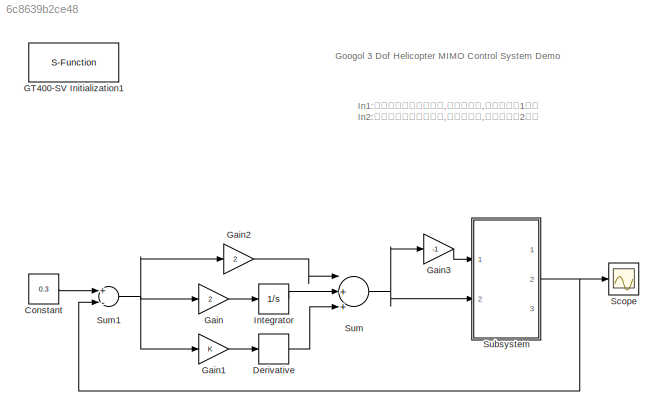
MODEL slx_6c8639b2ce48
KIND model
BLOCK [Constant] Constant
  Value = 0.3
BLOCK [Derivative] Derivative
BLOCK [S-Function] GT400-SV Initialization1
  EnableBusSupport = off
  FunctionName = Initialize
  Parameters = openloop
  Ports = []
  Priority = 0
BLOCK [Gain] Gain
  Gain = 2
  OutDataTypeStr = Inherit: Inherit via internal rule
  ParamDataTypeStr = Inherit: Inherit via internal rule
  SaturateOnIntegerOverflow = off
BLOCK [Gain] Gain1
  OutDataTypeStr = Inherit: Inherit via internal rule
  ParamDataTypeStr = Inherit: Inherit via internal rule
  SaturateOnIntegerOverflow = off
BLOCK [Gain] Gain2
  Gain = 2
  OutDataTypeStr = Inherit: Inherit via internal rule
  ParamDataTypeStr = Inherit: Inherit via internal rule
  SaturateOnIntegerOverflow = off
BLOCK [Gain] Gain3
  Gain = -1
  OutDataTypeStr = Inherit: Inherit via internal rule
  ParamDataTypeStr = Inherit: Inherit via internal rule
  SaturateOnIntegerOverflow = off
BLOCK [Integrator] Integrator
  Ports = [1, 1]
BLOCK [Scope] Scope
  DataFormat = StructureWithTime
  Floating = off
  MaxDataPoints = 5000000
  NumInputPorts = 1
  Ports = [1]
  SampleTime = 0
  SaveToWorkspace = on
  ShowLegends = off
  YMax = 0.296
  YMin = 0.2875
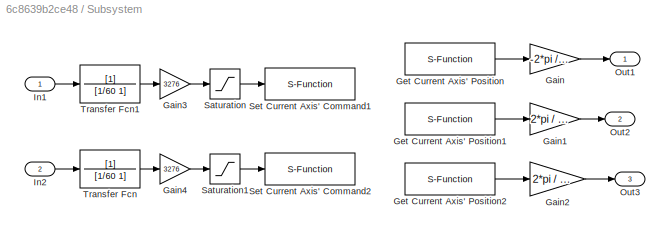
BLOCK [SubSystem] Subsystem
  FunctionWithSeparateData = off
  MaskHideContents = off
  MinAlgLoopOccurrences = off
  Opaque = off
  Ports = [2, 3]
  PropExecContextOutsideSubsystem = off
  RTWSystemCode = Auto
  RequestExecContextInheritance = off
BLOCK [Gain] Subsystem/Gain
  Gain = -2*pi / 2400
BLOCK [Gain] Subsystem/Gain1
  Gain = 2*pi / 2400
BLOCK [Gain] Subsystem/Gain2
  Gain = 2*pi / 2400
BLOCK [Gain] Subsystem/Gain3
  Gain = 3276
  OutDataTypeStr = Inherit: Inherit via internal rule
  ParamDataTypeStr = Inherit: Inherit via internal rule
  SaturateOnIntegerOverflow = off
BLOCK [Gain] Subsystem/Gain4
  Gain = 3276
  OutDataTypeStr = Inherit: Inherit via internal rule
  ParamDataTypeStr = Inherit: Inherit via internal rule
  SaturateOnIntegerOverflow = off
BLOCK [S-Function] Subsystem/Get Current Axis' Position
  EnableBusSupport = off
  FunctionName = GetPos
  Parameters = axis
  Ports = [0, 1]
  Priority = 1
BLOCK [S-Function] Subsystem/Get Current Axis' Position1
  EnableBusSupport = off
  FunctionName = GetPos
  Parameters = axis
  Ports = [0, 1]
  Priority = 1
BLOCK [S-Function] Subsystem/Get Current Axis' Position2
  EnableBusSupport = off
  FunctionName = GetPos
  Parameters = axis
  Ports = [0, 1]
  Priority = 1
BLOCK [Inport] Subsystem/In1
  IconDisplay = Port number
BLOCK [Inport] Subsystem/In2
  IconDisplay = Port number
  Port = 2
BLOCK [Outport] Subsystem/Out1
  IconDisplay = Port number
BLOCK [Outport] Subsystem/Out2
  IconDisplay = Port number
  Port = 2
BLOCK [Outport] Subsystem/Out3
  IconDisplay = Port number
  Port = 3
BLOCK [Saturate] Subsystem/Saturation
  InputPortMap = u0
  LowerLimit = 0
  Ports = [1, 1]
  UpperLimit = 9000
BLOCK [Saturate] Subsystem/Saturation1
  InputPortMap = u0
  LowerLimit = 0
  Ports = [1, 1]
  UpperLimit = 9000
BLOCK [S-Function] Subsystem/Set Current Axis' Command1
  EnableBusSupport = off
  FunctionName = SetMtrCmd
  Parameters = axis
  Ports = [1]
  Priority = 1
BLOCK [S-Function] Subsystem/Set Current Axis' Command2
  EnableBusSupport = off
  FunctionName = SetMtrCmd
  Parameters = axis
  Ports = [1]
  Priority = 1
BLOCK [TransferFcn] Subsystem/Transfer Fcn
  Denominator = [1/60 1]
BLOCK [TransferFcn] Subsystem/Transfer Fcn1
  Denominator = [1/60 1]
BLOCK [Sum] Sum
  InputSameDT = off
  Inputs = |+++
  OutDataTypeStr = Inherit: Inherit via internal rule
  Ports = [3, 1]
  SaturateOnIntegerOverflow = off
BLOCK [Sum] Sum1
  InputSameDT = off
  Inputs = +-
  OutDataTypeStr = Inherit: Inherit via internal rule
  Ports = [2, 1]
  SaturateOnIntegerOverflow = off
ANNOTATION (root): Googol 3 Dof Helicopter MIMO Control System Demo
ANNOTATION (root): In1:从机尾往螺旋桨方向看,右侧螺旋桨,对应手册的1号桨 In2:从机尾往螺旋桨方向看,左侧螺旋桨,对应手册的2号桨
LINE Constant:1 -> Sum1:1
LINE Derivative:1 -> Sum:3
LINE Gain1:1 -> Derivative:1
LINE Gain2:1 -> Sum:1
LINE Gain3:1 -> Subsystem:1
LINE Gain:1 -> Integrator:1
LINE Integrator:1 -> Sum:2
LINE Subsystem/Gain1:1 -> Subsystem/Out2:1
LINE Subsystem/Gain2:1 -> Subsystem/Out3:1
LINE Subsystem/Gain3:1 -> Subsystem/Saturation:1
LINE Subsystem/Gain4:1 -> Subsystem/Saturation1:1
LINE Subsystem/Gain:1 -> Subsystem/Out1:1
LINE Subsystem/Get Current Axis' Position1:1 -> Subsystem/Gain1:1
LINE Subsystem/Get Current Axis' Position2:1 -> Subsystem/Gain2:1
LINE Subsystem/Get Current Axis' Position:1 -> Subsystem/Gain:1
LINE Subsystem/In1:1 -> Subsystem/Transfer Fcn1:1
LINE Subsystem/In2:1 -> Subsystem/Transfer Fcn:1
LINE Subsystem/Saturation1:1 -> Subsystem/Set Current Axis' Command2:1
LINE Subsystem/Saturation:1 -> Subsystem/Set Current Axis' Command1:1
LINE Subsystem/Transfer Fcn1:1 -> Subsystem/Gain3:1
LINE Subsystem/Transfer Fcn:1 -> Subsystem/Gain4:1
NET Subsystem:2 -> Scope:1, Sum1:2
NET Sum1:1 -> Gain1:1, Gain2:1, Gain:1
NET Sum:1 -> Gain3:1, Subsystem:2
note: NET lines group one-source signal fan-out (src -> all destinations, sorted); 1:1 wires keep LINE
